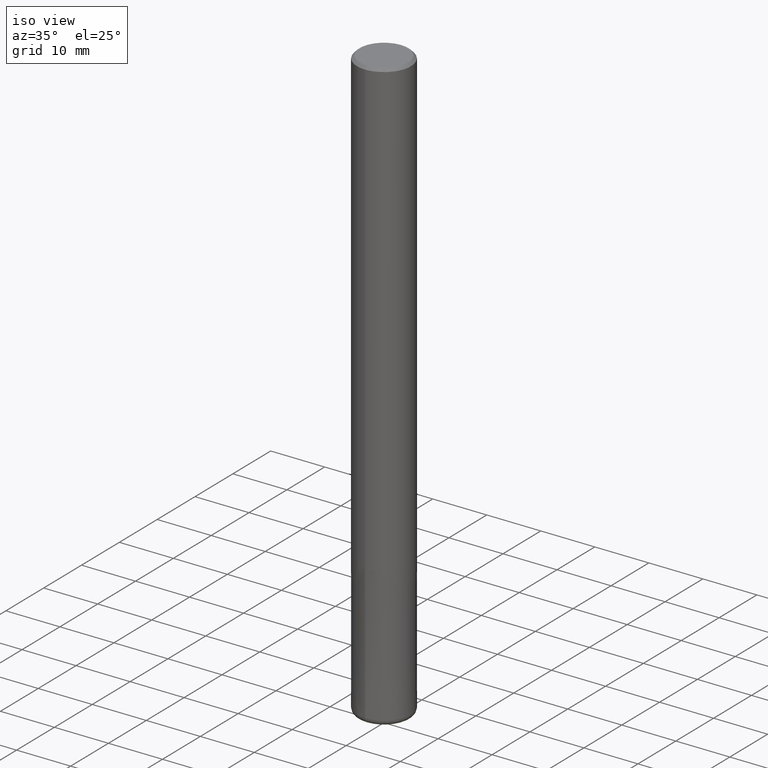
[diagram: clean part render]
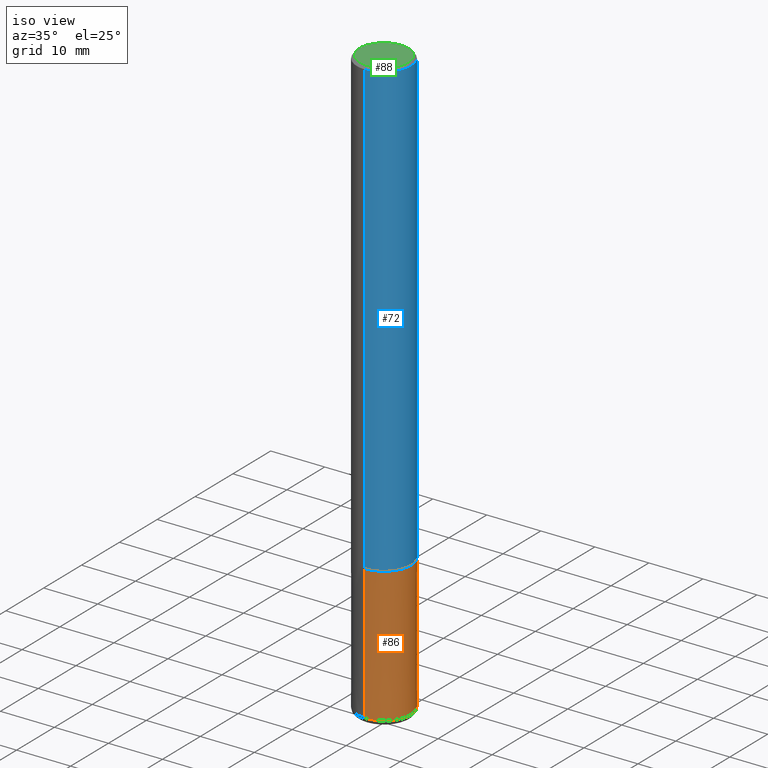
[diagram: same view with three faces highlighted in distinct colors, each labeled with its STEP entity id]
A machine part, iso view with three faces highlighted in distinct colors.
Their STEP definitions:

[orange] entity #86 — the highlighted conical surface has half-angle 0 deg.
#80=EDGE_CURVE('',#94,#102,#187,.T.);
#82=VERTEX_POINT('',#189);
#86=ADVANCED_FACE('',(#194),#195,.T.);
#94=VERTEX_POINT('',#205);
#102=VERTEX_POINT('',#213);
#108=EDGE_CURVE('',#82,#94,#219,.T.);
#112=EDGE_CURVE('',#82,#114,#223,.T.);
#114=VERTEX_POINT('',#225);
#130=EDGE_CURVE('',#102,#114,#245,.T.);
#187=CIRCLE('',#295,5.0);
#189=CARTESIAN_POINT('',(0.0,4.9999,-84.0));
#194=FACE_OUTER_BOUND('',#302,.T.);
#195=CONICAL_SURFACE('',#303,4.99995,3.99999999996934E-006);
#205=CARTESIAN_POINT('',(0.0,5.0,-109.0));
#213=CARTESIAN_POINT('',(6.12303176911188E-016,-5.0,-109.0));
#219=LINE('',#332,#333);
#223=CIRCLE('',#339,4.9999);
#225=CARTESIAN_POINT('',(6.1229093084765E-016,-4.9999,-84.0));
#245=LINE('',#368,#369);
#295=AXIS2_PLACEMENT_3D('',#428,#429,#430);
#302=EDGE_LOOP('',(#440,#441,#442,#443));
#303=AXIS2_PLACEMENT_3D('',#444,#445,#446);
#332=CARTESIAN_POINT('',(-6.12297053879419E-016,4.99995,-96.5));
#333=VECTOR('',#468,1.0);
#339=AXIS2_PLACEMENT_3D('',#472,#473,#474);
#368=CARTESIAN_POINT('',(6.12297053879419E-016,-4.99995,-96.5));
#369=VECTOR('',#507,1.0);
#428=CARTESIAN_POINT('',(0.0,0.0,-109.0));
#429=DIRECTION('',(0.0,0.0,-1.0));
#430=DIRECTION('',(0.0,1.0,0.0));
#440=ORIENTED_EDGE('',*,*,#108,.F.);
#441=ORIENTED_EDGE('',*,*,#112,.T.);
#442=ORIENTED_EDGE('',*,*,#130,.F.);
#443=ORIENTED_EDGE('',*,*,#80,.F.);
#444=CARTESIAN_POINT('',(0.0,0.0,-96.5));
#445=DIRECTION('',(0.0,-0.0,-1.0));
#446=DIRECTION('',(0.0,1.0,0.0));
#468=DIRECTION('',(-4.8984254152389E-022,3.99999999995868E-006,-0.999999999992));
#472=CARTESIAN_POINT('',(0.0,0.0,-84.0));
#473=DIRECTION('',(0.0,0.0,-1.0));
#474=DIRECTION('',(0.0,1.0,0.0));
#507=DIRECTION('',(-4.8984254152389E-022,3.99999999995868E-006,0.999999999992));

[blue] entity #72 — the highlighted cylindrical surface (edge-blend (fillet) strip) has radius 5 mm, axis along (-0, -0, 1).
#70=VERTEX_POINT('',#175);
#72=ADVANCED_FACE('',(#177),#178,.T.);
#74=VERTEX_POINT('',#180);
#96=VERTEX_POINT('',#207);
#98=EDGE_CURVE('',#74,#144,#209,.T.);
#120=EDGE_CURVE('',#96,#70,#233,.T.);
#126=EDGE_CURVE('',#70,#74,#239,.T.);
#142=EDGE_CURVE('',#96,#144,#258,.T.);
#144=VERTEX_POINT('',#260);
#175=CARTESIAN_POINT('',(0.0,5.0,-84.0));
#177=FACE_OUTER_BOUND('',#283,.T.);
#178=CYLINDRICAL_SURFACE('',#284,5.0);
#180=CARTESIAN_POINT('',(6.12303176911189E-016,-5.0,-84.0));
#207=CARTESIAN_POINT('',(0.0,5.0,-0.5));
#209=LINE('',#318,#319);
#233=LINE('',#350,#351);
#239=CIRCLE('',#361,5.0);
#258=CIRCLE('',#385,5.0);
#260=CARTESIAN_POINT('',(6.12303176911189E-016,-5.0,-0.5));
#283=EDGE_LOOP('',(#412,#413,#414,#415));
#284=AXIS2_PLACEMENT_3D('',#416,#417,#418);
#318=CARTESIAN_POINT('',(6.12303176911189E-016,-5.0,-42.25));
#319=VECTOR('',#461,1.0);
#350=CARTESIAN_POINT('',(-6.12303176911189E-016,5.0,-42.25));
#351=VECTOR('',#491,1.0);
#361=AXIS2_PLACEMENT_3D('',#496,#497,#498);
#385=AXIS2_PLACEMENT_3D('',#521,#522,#523);
#412=ORIENTED_EDGE('',*,*,#120,.F.);
#413=ORIENTED_EDGE('',*,*,#142,.T.);
#414=ORIENTED_EDGE('',*,*,#98,.F.);
#415=ORIENTED_EDGE('',*,*,#126,.F.);
#416=CARTESIAN_POINT('',(0.0,0.0,-42.25));
#417=DIRECTION('',(-0.0,-0.0,1.0));
#418=DIRECTION('',(0.0,1.0,0.0));
#461=DIRECTION('',(-0.0,-0.0,1.0));
#491=DIRECTION('',(0.0,0.0,-1.0));
#496=CARTESIAN_POINT('',(0.0,0.0,-84.0));
#497=DIRECTION('',(0.0,0.0,-1.0));
#498=DIRECTION('',(0.0,1.0,0.0));
#521=CARTESIAN_POINT('',(0.0,0.0,-0.5));
#522=DIRECTION('',(0.0,0.0,-1.0));
#523=DIRECTION('',(0.0,1.0,0.0));

[green] entity #88 — the highlighted planar face has unit normal (-0, 0, 1).
#88=ADVANCED_FACE('',(#197),#198,.T.);
#90=VERTEX_POINT('',#200);
#100=VERTEX_POINT('',#211);
#104=EDGE_CURVE('',#100,#90,#215,.T.);
#122=EDGE_CURVE('',#90,#100,#235,.T.);
#197=FACE_OUTER_BOUND('',#305,.T.);
#198=PLANE('',#306);
#200=CARTESIAN_POINT('',(5.5107285922007E-016,-4.5,0.0));
#211=CARTESIAN_POINT('',(0.0,4.5,0.0));
#215=CIRCLE('',#326,4.5);
#235=CIRCLE('',#354,4.5);
#305=EDGE_LOOP('',(#448,#449));
#306=AXIS2_PLACEMENT_3D('',#450,#451,#452);
#326=AXIS2_PLACEMENT_3D('',#462,#463,#464);
#354=AXIS2_PLACEMENT_3D('',#492,#493,#494);
#448=ORIENTED_EDGE('',*,*,#104,.F.);
#449=ORIENTED_EDGE('',*,*,#122,.F.);
#450=CARTESIAN_POINT('',(0.0,2.25,0.0));
#451=DIRECTION('',(-0.0,0.0,1.0));
#452=DIRECTION('',(0.0,-1.0,0.0));
#462=CARTESIAN_POINT('',(0.0,0.0,0.0));
#463=DIRECTION('',(0.0,0.0,-1.0));
#464=DIRECTION('',(0.0,1.0,0.0));
#492=CARTESIAN_POINT('',(0.0,0.0,0.0));
#493=DIRECTION('',(0.0,0.0,-1.0));
#494=DIRECTION('',(0.0,1.0,0.0));